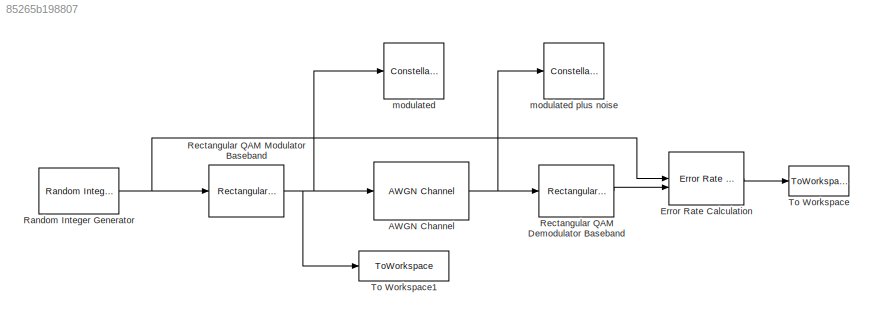
MODEL slx_85265b198807
KIND model
CONFIG AbsTol = auto
CONFIG EnableMultiTasking = off
CONFIG FixedStep = auto
CONFIG MaxStep = auto
CONFIG MinStep = auto
CONFIG RelTol = 1e-3
CONFIG SampleTimeConstraint = Unconstrained
CONFIG SolverName = VariableStepAuto
CONFIG StartTime = 0.0
CONFIG StopTime = 10.0
BLOCK [Reference] AWGN Channel  REF=commchan3/AWGN
Channel
  SourceBlock = commchan3/AWGN\nChannel
  SourceType = AWGN Channel
  UserDataPersistent = on
BLOCK [Reference] Error Rate Calculation  REF=commsink2/Error Rate
Calculation
  SourceBlock = commsink2/Error Rate\nCalculation
  SourceType = Error Rate Calculation
BLOCK [Reference] Random Integer Generator  REF=commrandsrc3/Random Integer
Generator
  SourceBlock = commrandsrc3/Random Integer\nGenerator
  SourceType = Random Integer Generator
BLOCK [Reference] Rectangular QAM Demodulator Baseband  REF=commdigbbndam3/Rectangular QAM
Demodulator
Baseband
  SourceBlock = commdigbbndam3/Rectangular QAM\nDemodulator\nBaseband
  SourceType = Rectangular QAM Demodulator Baseband
BLOCK [Reference] Rectangular QAM Modulator Baseband  REF=commdigbbndam3/Rectangular QAM
Modulator
Baseband
  SourceBlock = commdigbbndam3/Rectangular QAM\nModulator\nBaseband
  SourceType = Rectangular QAM Modulator Baseband
BLOCK [ToWorkspace] To Workspace
  FixptAsFi = on
  MaxDataPoints = inf
  SampleTime = -1
  Save2DSignal = 2-D array (concatenate along first dimension)
  VariableName = berSim
BLOCK [ToWorkspace] To Workspace1
  FixptAsFi = on
  MaxDataPoints = inf
  SampleTime = -1
  SaveFormat = Timeseries
  VariableName = modulatedSignal
BLOCK [ConstellationDiagram] modulated
  GraphicalSettings = {"Style":{"BackgroundColor":[1,1,1],"AxesColor":[1,1,1],"LabelsColor":[0,0,0],"LineStyle":["NONE","NONE"],"LineColor":[[0,0,1],[1,0,0]],"LineWidth":[10,1],"Marker":[".","+"],"IsRefLine":[false,true],"FontSize":"small"},"ReferenceConstellation":{"AverageReferencePower":"42","ConstellationNormalization":"AveragePower","RefConstellationValue":"[0.7071+0.7071i  -0.7071+0.7071i  -0.7071-0.7071i 0.7070-...<+70ch>
  ReferenceConstellation = 64-QAM
  ScopeFrameLocation = window
  WasSavedAsWebScope = on
  WindowPosition = [769.000000,1.000000,766.000000,832.000000,]
  XLimits = [-7.5,7.5]
  YLimits = [-7.5,7.5]
BLOCK [ConstellationDiagram] modulated plus noise
  GraphicalSettings = {"Style":{"BackgroundColor":[1,1,1],"AxesColor":[1,1,1],"LabelsColor":[0,0,0],"LineStyle":["NONE","NONE"],"LineColor":[[0,0,1],[1,0,0]],"LineWidth":[0.01,1],"Marker":[".","+"],"IsRefLine":[false,true],"FontSize":"small"},"ReferenceConstellation":{"AverageReferencePower":"42","ConstellationNormalization":"AveragePower","RefConstellationValue":"[0.7071+0.7071i  -0.7071+0.7071i  -0.7071-0.7071i 0.707...<+72ch>
  ReferenceConstellation = 64-QAM
  ScopeFrameLocation = window
  WasSavedAsWebScope = on
  WindowPosition = [1.000000,1.000000,766.000000,832.000000,]
  XLimits = [-8.528153780267873,8.38128878585114]
  YLimits = [-8.557642436585242,8.369389320101838]
NET AWGN Channel:1 -> Rectangular QAM Demodulator Baseband:1, modulated plus noise:1
LINE Error Rate Calculation:1 -> To Workspace:1
NET Random Integer Generator:1 -> Error Rate Calculation:1, Rectangular QAM Modulator Baseband:1
LINE Rectangular QAM Demodulator Baseband:1 -> Error Rate Calculation:2
NET Rectangular QAM Modulator Baseband:1 -> AWGN Channel:1, To Workspace1:1, modulated:1
note: NET lines group one-source signal fan-out (src -> all destinations, sorted); 1:1 wires keep LINE
